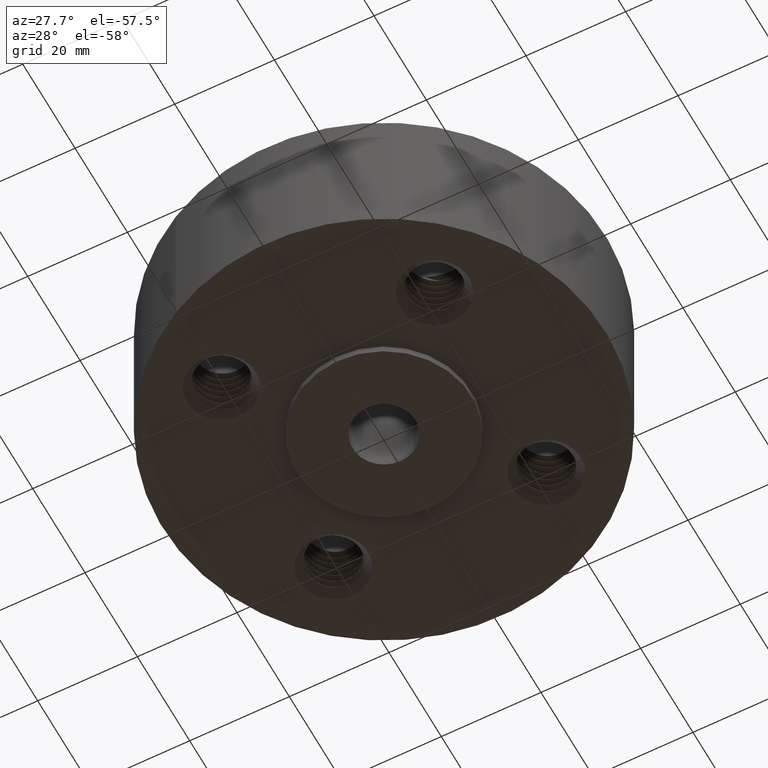
[diagram: clean part render]
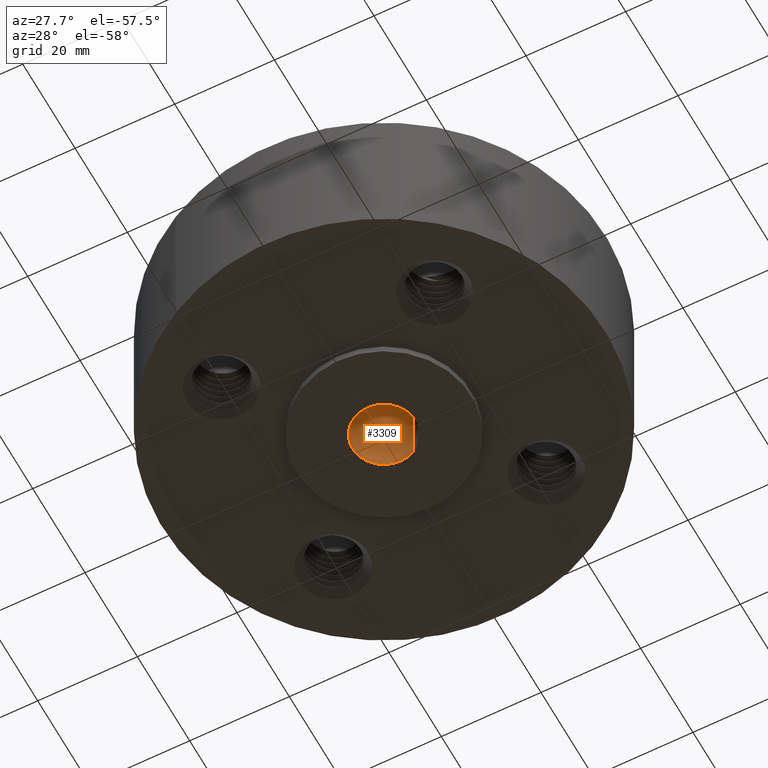
[diagram: same view with one face highlighted and labeled with its STEP entity id]
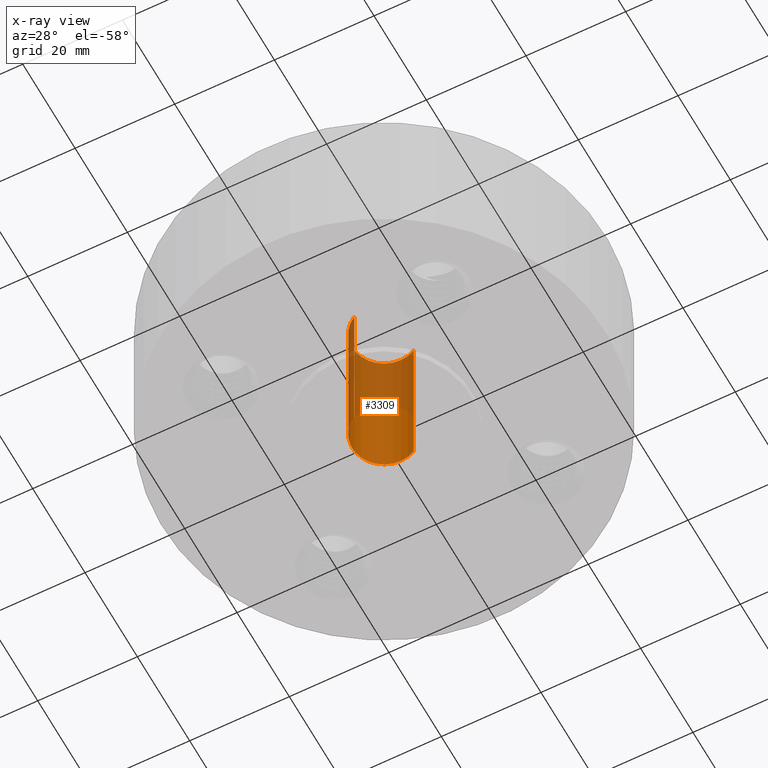
[diagram: x-ray of the same camera — body ghosted, the highlighted face saturated]
A machine part, auxiliary view. The second image highlights one B-rep face of the part: STEP entity #3309.
The next image is the same camera in x-ray: the body ghosted, the highlighted face saturated — about 49% of this face is hidden behind the body in this view.
In plain terms, the highlighted cylindrical surface (edge-blend (fillet) strip) has radius 6.35 mm, axis along (0, 0, -1).
Its self-contained STEP definition (entity closure, byte-faithful):
#3259=AXIS2_PLACEMENT_3D('Circle Axis2P3D',#3257,#3258,$) ;
#3270=AXIS2_PLACEMENT_3D('Cylinder Axis2P3D',#3267,#3268,#3269) ;
#3300=AXIS2_PLACEMENT_3D('Circle Axis2P3D',#3298,#3299,$) ;
#3252=CARTESIAN_POINT('Vertex',(0.119856384652,0.219395640473,-0.0625000000003)) ;
#3254=CARTESIAN_POINT('Vertex',(-0.119856384652,-0.219395640473,-0.0625000000003)) ;
#3257=CARTESIAN_POINT('Axis2P3D Location',(0.,0.,-0.0625000000003)) ;
#3267=CARTESIAN_POINT('Axis2P3D Location',(0.,0.,0.593750000002)) ;
#3276=CARTESIAN_POINT('Vertex',(0.119856384652,0.219395640473,1.25000000001)) ;
#3278=CARTESIAN_POINT('Vertex',(-0.119856384652,-0.219395640473,1.25000000001)) ;
#3281=CARTESIAN_POINT('Line Origine',(0.119856384652,0.219395640473,0.593750000002)) ;
#3286=CARTESIAN_POINT('Line Origine',(-0.119856384652,-0.219395640473,0.593750000002)) ;
#3298=CARTESIAN_POINT('Axis2P3D Location',(0.,0.,1.25000000001)) ;
#3258=DIRECTION('Axis2P3D Direction',(0.,0.,-0.0393700787402)) ;
#3268=DIRECTION('Axis2P3D Direction',(0.,0.,-0.0393700787402)) ;
#3269=DIRECTION('Axis2P3D XDirection',(-0.0188750212049,-0.0345504945626,0.)) ;
#3282=DIRECTION('Vector Direction',(0.,0.,-0.0393700787402)) ;
#3287=DIRECTION('Vector Direction',(0.,0.,-0.0393700787402)) ;
#3299=DIRECTION('Axis2P3D Direction',(0.,0.,-0.0393700787402)) ;
#3283=VECTOR('Line Direction',#3282,0.0393700787402) ;
#3288=VECTOR('Line Direction',#3287,0.0393700787402) ;
#3304=ORIENTED_EDGE('',*,*,#3302,.F.) ;
#3305=ORIENTED_EDGE('',*,*,#3290,.T.) ;
#3306=ORIENTED_EDGE('',*,*,#3261,.T.) ;
#3307=ORIENTED_EDGE('',*,*,#3285,.F.) ;
#3309=ADVANCED_FACE('PartBody',(#3308),#3271,.F.) ;
#3260=CIRCLE('generated circle',#3259,0.250000000001) ;
#3301=CIRCLE('generated circle',#3300,0.250000000001) ;
#3271=CYLINDRICAL_SURFACE('generated cylinder',#3270,0.250000000001) ;
#3261=EDGE_CURVE('',#3255,#3253,#3260,.T.) ;
#3285=EDGE_CURVE('',#3277,#3253,#3284,.T.) ;
#3290=EDGE_CURVE('',#3279,#3255,#3289,.T.) ;
#3302=EDGE_CURVE('',#3279,#3277,#3301,.T.) ;
#3303=EDGE_LOOP('',(#3304,#3305,#3306,#3307)) ;
#3308=FACE_OUTER_BOUND('',#3303,.T.) ;
#3284=LINE('Line',#3281,#3283) ;
#3289=LINE('Line',#3286,#3288) ;
#3253=VERTEX_POINT('',#3252) ;
#3255=VERTEX_POINT('',#3254) ;
#3277=VERTEX_POINT('',#3276) ;
#3279=VERTEX_POINT('',#3278) ;